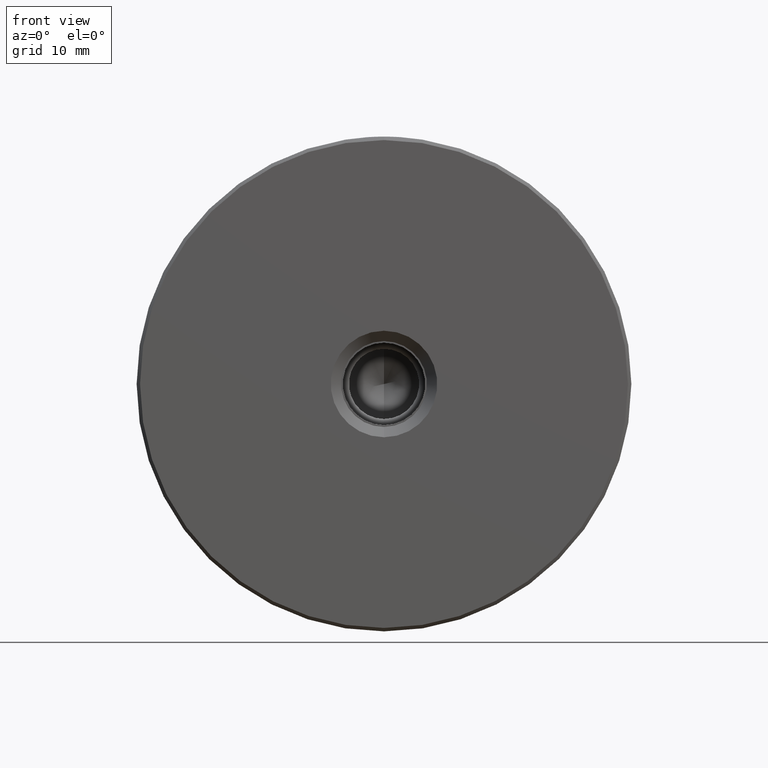
[diagram: clean part render]
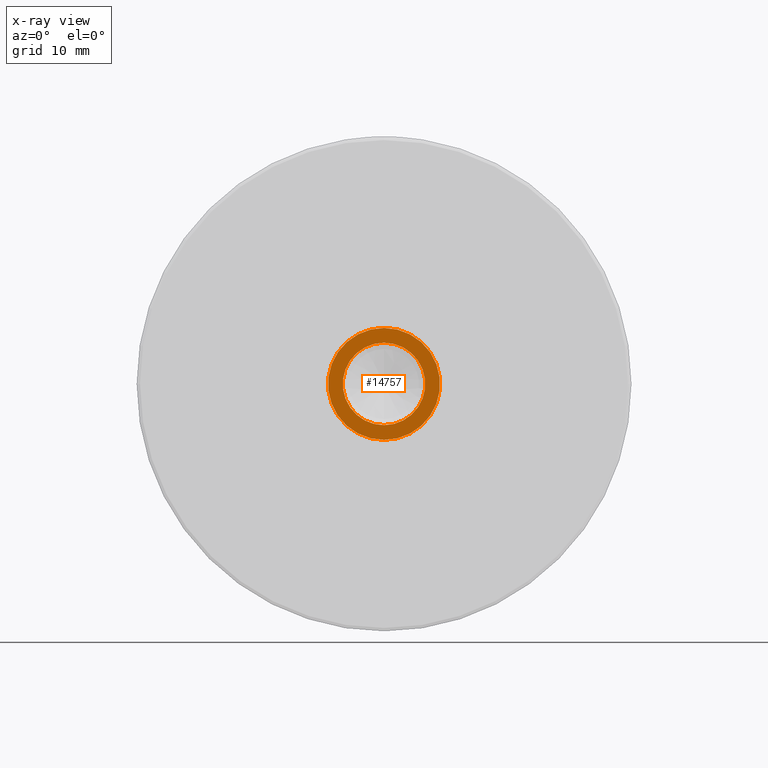
[diagram: x-ray — body ghosted, one internal face saturated and labeled with its STEP entity id]
A machine part, front view, then the same camera in x-ray: the body is ghosted and one INTERNAL B-rep face — a face not visible from any outside direction — is saturated and labeled: STEP entity #14757.
In plain terms, the highlighted planar face has unit normal (0, 1, 0).
Its self-contained STEP definition (entity closure, byte-faithful):
#94 = CARTESIAN_POINT ( 'NONE',  ( 0.000000000000000000, 0.000000000000000000, 0.000000000000000000 ) ) ;
#286 = DIRECTION ( 'NONE',  ( 0.000000000000000000, 0.000000000000000000, 1.000000000000000000 ) ) ;
#651 = VERTEX_POINT ( 'NONE', #5135 ) ;
#1198 = DIRECTION ( 'NONE',  ( 0.000000000000000000, 1.000000000000000000, 0.000000000000000000 ) ) ;
#1706 = AXIS2_PLACEMENT_3D ( 'NONE', #7379, #2744, #11840 ) ;
#1871 = DIRECTION ( 'NONE',  ( 0.000000000000000000, 1.000000000000000000, 0.000000000000000000 ) ) ;
#2744 = DIRECTION ( 'NONE',  ( 0.000000000000000000, 1.000000000000000000, 0.000000000000000000 ) ) ;
#2978 = DIRECTION ( 'NONE',  ( 0.000000000000000000, -0.000000000000000000, 1.000000000000000000 ) ) ;
#3485 = DIRECTION ( 'NONE',  ( 0.000000000000000000, 1.000000000000000000, 0.000000000000000000 ) ) ;
#3618 = CIRCLE ( 'NONE', #11340, 8.150000000000000355 ) ;
#3895 = CARTESIAN_POINT ( 'NONE',  ( 9.980871413050929957E-16, 0.000000000000000000, 8.150000000000000355 ) ) ;
#4243 = VERTEX_POINT ( 'NONE', #11638 ) ;
#4553 = VERTEX_POINT ( 'NONE', #8261 ) ;
#5135 = CARTESIAN_POINT ( 'NONE',  ( 0.000000000000000000, 0.000000000000000000, -8.150000000000000355 ) ) ;
#5873 = ORIENTED_EDGE ( 'NONE', *, *, #12553, .F. ) ;
#5972 = AXIS2_PLACEMENT_3D ( 'NONE', #7180, #10570, #286 ) ;
#6221 = EDGE_CURVE ( 'NONE', #651, #12338, #11290, .T. ) ;
#7076 = EDGE_CURVE ( 'NONE', #4243, #4553, #9292, .T. ) ;
#7180 = CARTESIAN_POINT ( 'NONE',  ( 0.000000000000000000, 0.000000000000000000, 0.000000000000000000 ) ) ;
#7379 = CARTESIAN_POINT ( 'NONE',  ( 0.000000000000000000, 0.000000000000000000, 0.000000000000000000 ) ) ;
#7591 = AXIS2_PLACEMENT_3D ( 'NONE', #9359, #3485, #10417 ) ;
#7926 = ORIENTED_EDGE ( 'NONE', *, *, #7076, .T. ) ;
#8096 = AXIS2_PLACEMENT_3D ( 'NONE', #14483, #1871, #2978 ) ;
#8261 = CARTESIAN_POINT ( 'NONE',  ( 0.000000000000000000, 0.000000000000000000, -6.000000000000000888 ) ) ;
#8468 = ORIENTED_EDGE ( 'NONE', *, *, #8483, .T. ) ;
#8483 = EDGE_CURVE ( 'NONE', #4553, #4243, #12136, .T. ) ;
#9292 = CIRCLE ( 'NONE', #5972, 6.000000000000000888 ) ;
#9359 = CARTESIAN_POINT ( 'NONE',  ( 0.000000000000000000, 0.000000000000000000, 0.000000000000000000 ) ) ;
#9558 = ORIENTED_EDGE ( 'NONE', *, *, #6221, .F. ) ;
#9840 = PLANE ( 'NONE',  #8096 ) ;
#10417 = DIRECTION ( 'NONE',  ( 0.000000000000000000, 0.000000000000000000, 1.000000000000000000 ) ) ;
#10570 = DIRECTION ( 'NONE',  ( 0.000000000000000000, 1.000000000000000000, 0.000000000000000000 ) ) ;
#10595 = FACE_OUTER_BOUND ( 'NONE', #12669, .T. ) ;
#11290 = CIRCLE ( 'NONE', #1706, 8.150000000000000355 ) ;
#11340 = AXIS2_PLACEMENT_3D ( 'NONE', #94, #1198, #11491 ) ;
#11491 = DIRECTION ( 'NONE',  ( 0.000000000000000000, 0.000000000000000000, 1.000000000000000000 ) ) ;
#11638 = CARTESIAN_POINT ( 'NONE',  ( 7.347880794884120722E-16, 0.000000000000000000, 6.000000000000000888 ) ) ;
#11840 = DIRECTION ( 'NONE',  ( 0.000000000000000000, 0.000000000000000000, 1.000000000000000000 ) ) ;
#12036 = FACE_BOUND ( 'NONE', #14812, .T. ) ;
#12136 = CIRCLE ( 'NONE', #7591, 6.000000000000000888 ) ;
#12338 = VERTEX_POINT ( 'NONE', #3895 ) ;
#12553 = EDGE_CURVE ( 'NONE', #12338, #651, #3618, .T. ) ;
#12669 = EDGE_LOOP ( 'NONE', ( #9558, #5873 ) ) ;
#14483 = CARTESIAN_POINT ( 'NONE',  ( 0.000000000000000000, 0.000000000000000000, 0.000000000000000000 ) ) ;
#14757 = ADVANCED_FACE ( 'NONE', ( #10595, #12036 ), #9840, .F. ) ;
#14812 = EDGE_LOOP ( 'NONE', ( #8468, #7926 ) ) ;